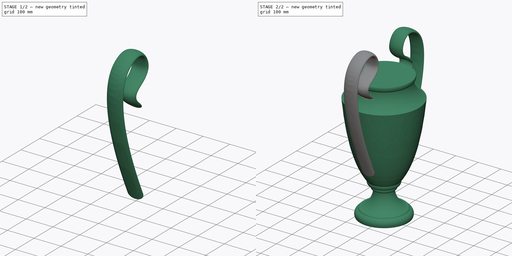
[diagram: build sequence overview — one tinted view per stage of 2, left to right]
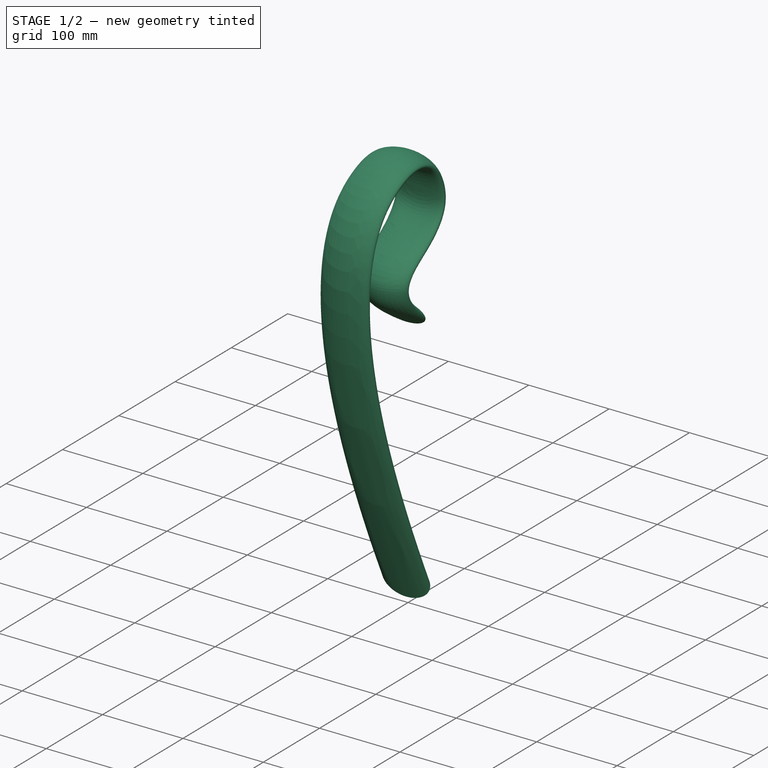
[diagram: stage 1 of 2 — iso view after this stage's code; geometry added in this stage tinted green]
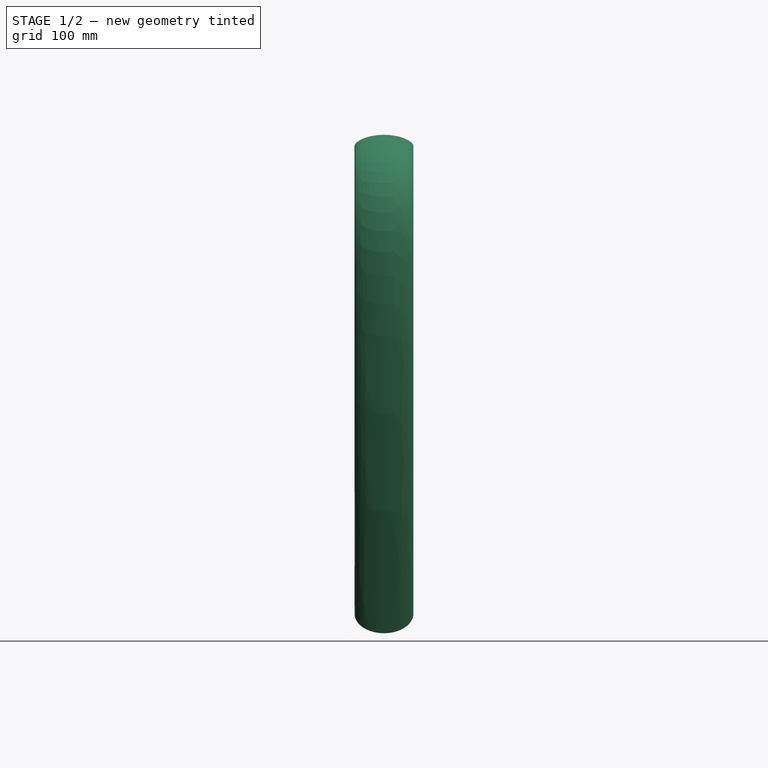
[diagram: stage 1 of 2 — front view after this stage's code; geometry added in this stage tinted green]
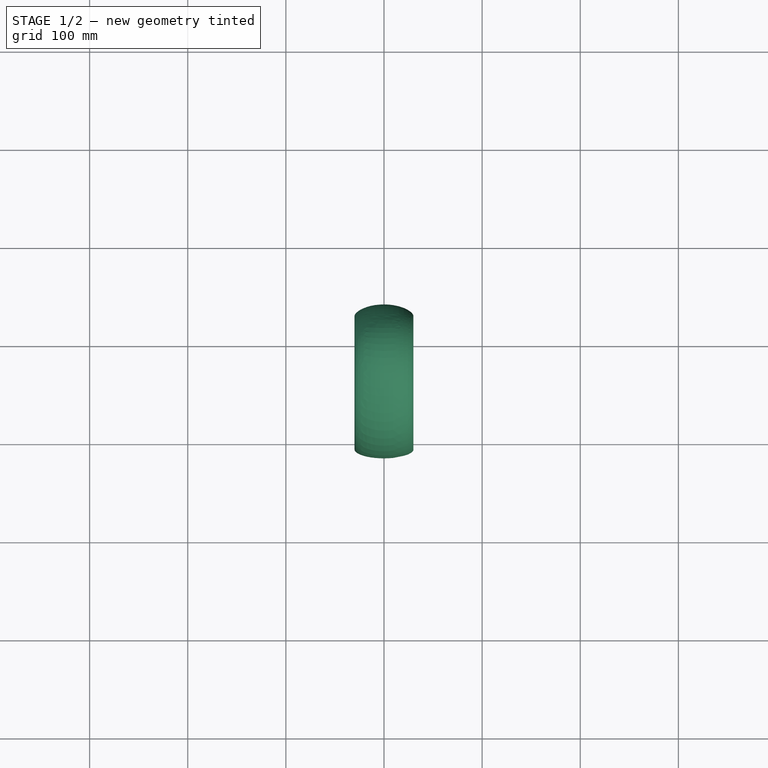
[diagram: stage 1 of 2 — top view after this stage's code; geometry added in this stage tinted green]
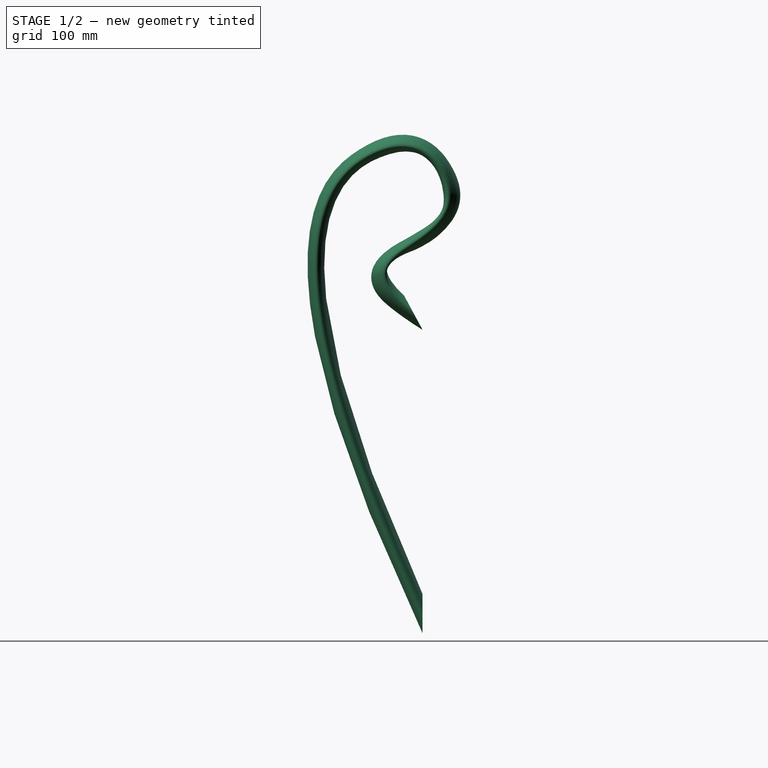
[diagram: stage 1 of 2 — right view after this stage's code; geometry added in this stage tinted green]
FCSTD DOCUMENT  (FreeCAD 0.18.3R)
Label: Champions
License: All rights reserved
LicenseURL: http://en.wikipedia.org/wiki/All_rights_reserved
objects: Sketcher::SketchObject×3, PartDesign::Body×2, Image::ImagePlane×1, PartDesign::Revolution×1, Part::Sweep×1, Part::Mirroring×1, Part::MultiFuse×1
note: 10 computed .brp shape members not serialized (recipe doc carries the construction recipe); baked Part::Feature solids carry a one-line shape summary decoded from their .brp

FEATURE [Sketcher::SketchObject] Sketch001
  ExternalGeometry = -> [Sketch]
  MapMode = 5
  Placement = pos=(0,0,0) rot=(0.57735,0.57735,0.57735;2.0944rad)
  Support = -> [YZ_Plane]
  sketch-geometry (13):
    g0-g6: Circle [constr] x7 (B-spline internal-alignment scaffolding for g7; pole/knot coordinates omitted)
    g7: BSplineCurve PolesCount=7 KnotsCount=5 Degree=3 IsPeriodic=0
    g8-g12: GeomPoint [constr] x5 (B-spline internal-alignment scaffolding for g7; pole/knot coordinates omitted)
  constraints (6):
    c: PointOnObject(g7,g-4)
    c: Radius(g0) = 70
    c: Equal(g0, g1-g6) x6
    c: PointOnObject(g7,g-3)
    c: InternalAlignment(g0-g6 -> g7) x7
    c: InternalAlignment(g8-g12 -> g7) x5
FEATURE [Sketcher::SketchObject] Sketch002
  ExternalGeometry = -> [Sketch001]
  Placement = pos=(0,103.45,0) rot=(1,0,0;1.5708rad)
  Support = -> [Sketch002]
  sketch-geometry (5):
    g0: Ellipse CenterX=-2.59e-14 CenterY=220.301 CenterZ=0 NormalX=0 NormalY=0 NormalZ=1 MajorRadius=30 MinorRadius=20 AngleXU=0
    g1: LineSegment [constr] StartX=30 StartY=220.301 StartZ=0 EndX=-30 EndY=220.301 EndZ=0
    g2: LineSegment [constr] StartX=-2.19e-14 StartY=240.301 StartZ=0 EndX=-3e-14 EndY=200.301 EndZ=0
    g3: GeomPoint X=22.3607 Y=220.301 Z=0
    g4: GeomPoint X=-22.3607 Y=220.301 Z=0
  constraints (5):
    c: InternalAlignment(g1-g4 -> g0) x4
    c: Coincident(g0,g-3)
    c: Horizontal(g0,g1)
    c: DistanceY(g2,g0) = 20
    c: DistanceX(g0,g1) = 30
FEATURE [PartDesign::Body] Body
  Group = -> [Sketch,Revolution,Sketch001,Sketch002]
  Origin = -> Origin
  Tip = -> Revolution
FEATURE [PartDesign::Body] Body001
  Origin = -> Origin001
FEATURE [Part::Sweep] Sweep
  Frenet = false
  Sections = -> [Sketch002]
  Solid = true
  Spine = -> Sketch001 [Edge1]
  Transition = 1
FEATURE [Part::Mirroring] Part__Mirroring  label="Sweep (Mirror #1)"
  Base = (0,0,0)
  Normal = (0,1,0)
  Source = -> Sweep
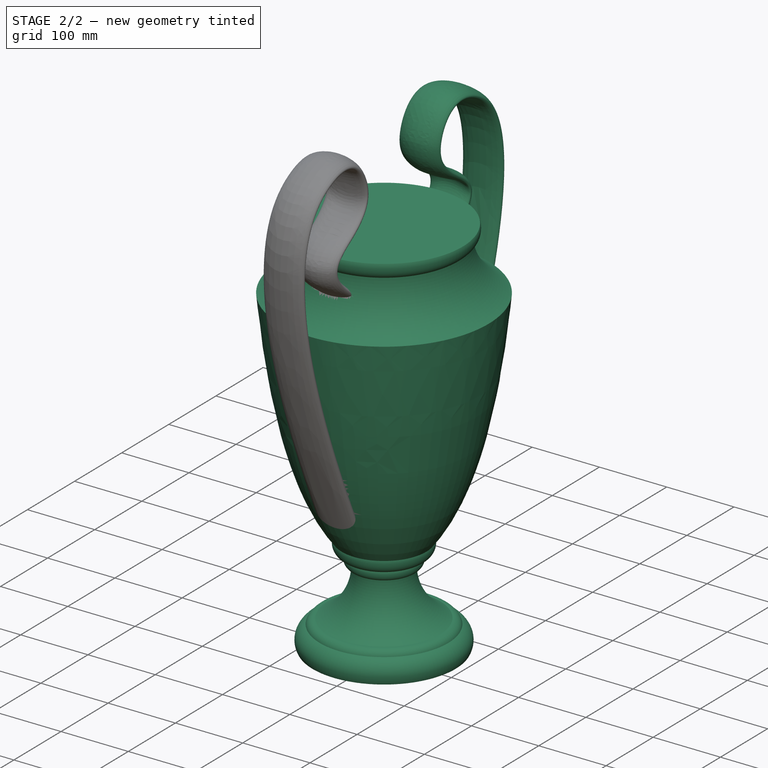
[diagram: stage 2 of 2 — iso view after this stage's code; geometry added in this stage tinted green]
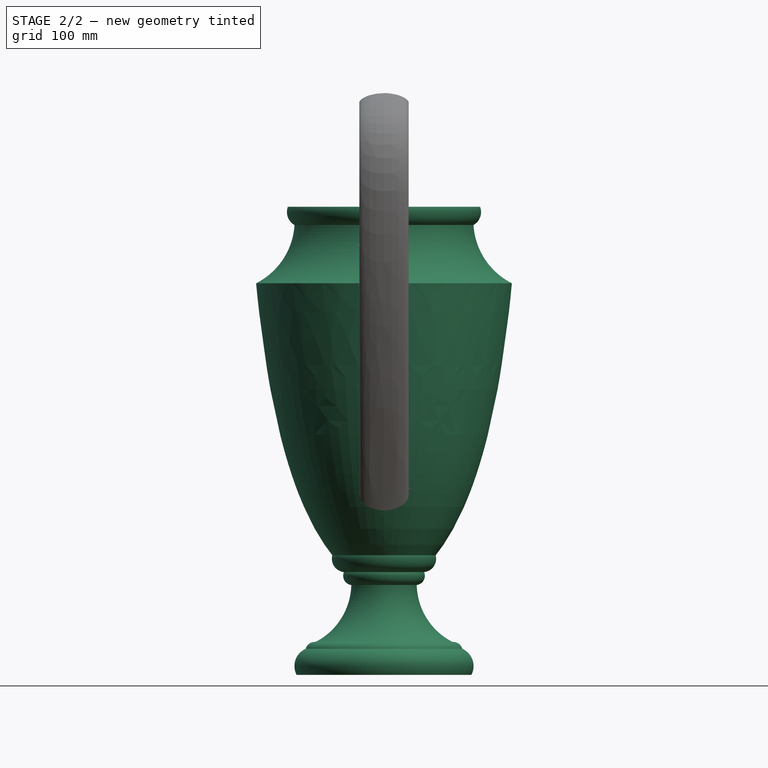
[diagram: stage 2 of 2 — front view after this stage's code; geometry added in this stage tinted green]
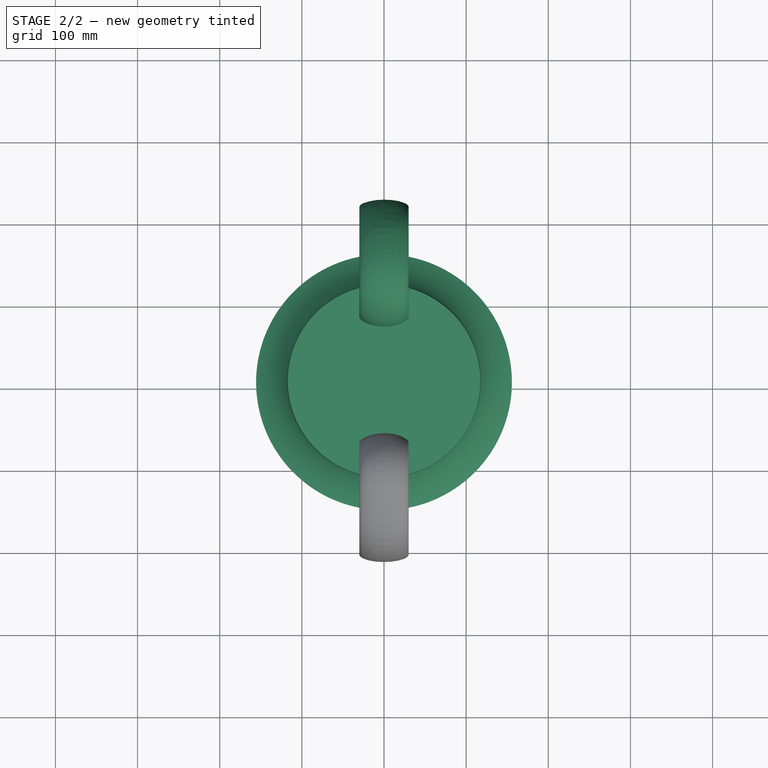
[diagram: stage 2 of 2 — top view after this stage's code; geometry added in this stage tinted green]
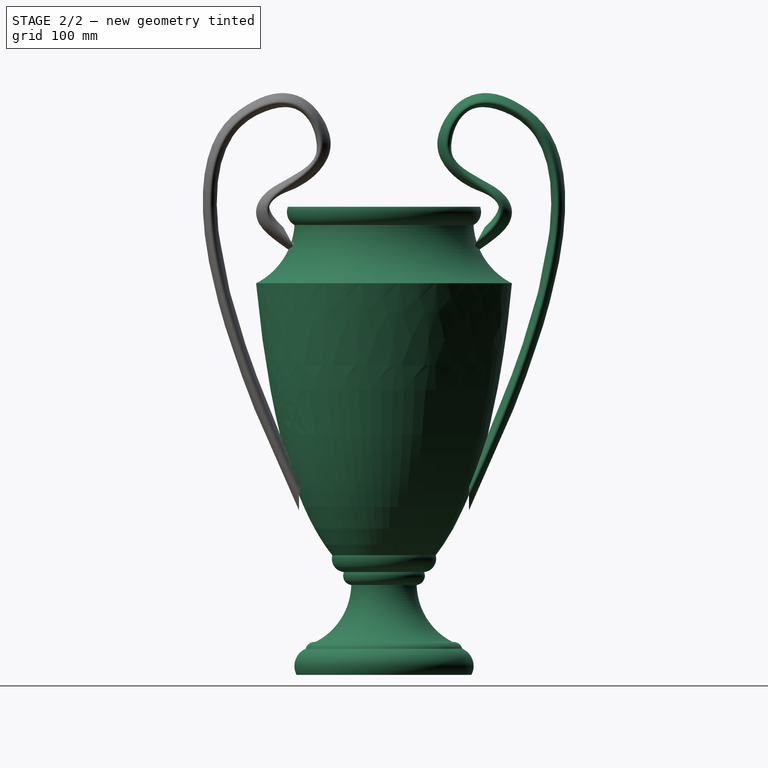
[diagram: stage 2 of 2 — right view after this stage's code; geometry added in this stage tinted green]
FEATURE [Sketcher::SketchObject] Sketch
  MapMode = 5
  Placement = pos=(0,0,0) rot=(0.57735,0.57735,0.57735;2.0944rad)
  Support = -> [YZ_Plane]
  sketch-geometry (16):
    g0: LineSegment StartX=0 StartY=0 StartZ=0 EndX=0 EndY=570 EndZ=0
    g1: LineSegment StartX=0 StartY=570 StartZ=0 EndX=117 EndY=570 EndZ=0
    g2: ArcOfCircle CenterX=99.9907 CenterY=563.503 CenterZ=0 NormalX=0 NormalY=0 NormalZ=1 AngleXU=0 Radius=18.208 StartAngle=5.22738 EndAngle=6.64807
    g3: ArcOfCircle CenterX=194.175 CenterY=553.037 CenterZ=0 NormalX=0 NormalY=0 NormalZ=1 AngleXU=0 Radius=85.3857 StartAngle=3.20465 EndAngle=4.24528
    g4: Circle [constr] CenterX=155.725 CenterY=476.798 CenterZ=0 NormalX=0 NormalY=0 NormalZ=1 AngleXU=0 Radius=40
    g5: Circle [constr] CenterX=132.618 CenterY=232.269 CenterZ=0 NormalX=0 NormalY=0 NormalZ=1 AngleXU=0 Radius=40
    g6: Circle [constr] CenterX=62.9496 CenterY=145.694 CenterZ=0 NormalX=0 NormalY=0 NormalZ=1 AngleXU=0 Radius=40
    g7: BSplineCurve PolesCount=3 KnotsCount=2 Degree=2 IsPeriodic=0
    g8: GeomPoint [constr] X=155.725 Y=476.798 Z=0
    g9: GeomPoint [constr] X=62.9496 Y=145.694 Z=0
    g10: ArcOfCircle CenterX=47.0928 CenterY=141.464 CenterZ=0 NormalX=0 NormalY=0 NormalZ=1 AngleXU=0 Radius=16.4114 StartAngle=4.81531 EndAngle=6.54389
    g11: ArcOfCircle CenterX=38.505 CenterY=120.618 CenterZ=0 NormalX=0 NormalY=0 NormalZ=1 AngleXU=0 Radius=11.2247 StartAngle=4.83027 EndAngle=6.69775
    g12: ArcOfCircle CenterX=119.789 CenterY=111.337 CenterZ=0 NormalX=0 NormalY=0 NormalZ=1 AngleXU=0 Radius=79.9857 StartAngle=3.16492 EndAngle=4.23959
    g13: ArcOfCircle CenterX=84.3083 CenterY=28.6003 CenterZ=0 NormalX=0 NormalY=0 NormalZ=1 AngleXU=0 Radius=11.5642 StartAngle=0.280064 EndAngle=1.65241
    g14: LineSegment StartX=0 StartY=0 StartZ=0 EndX=106.394 EndY=8.9e-15 EndZ=0
    g15: ArcOfCircle CenterX=86.0258 CenterY=10.7633 CenterZ=0 NormalX=0 NormalY=0 NormalZ=1 AngleXU=0 Radius=23.0368 StartAngle=5.79704 EndAngle=7.43386
  constraints (25):
    c: Coincident(g0,g-1)
    c: Vertical(g0)
    c: Coincident(g1,g0)
    c: Horizontal(g1)
    c: DistanceY(g0,g0) = 570
    c: DistanceX(g1,g1) = 117
    c: Coincident(g2,g1)
    c: Coincident(g3,g2)
    c: Coincident(g7,g3)
    c: Radius(g4) = 40
    c: Equal(g4,g5)
    c: Equal(g4,g6)
    c: InternalAlignment(g4,g7)
    c: InternalAlignment(g5,g7)
    c: InternalAlignment(g6,g7)
    c: InternalAlignment(g8,g7)
    c: InternalAlignment(g9,g7)
    c: Coincident(g10,g7)
    c: Coincident(g11,g10)
    c: Coincident(g12,g11)
    c: Coincident(g13,g12)
    c: Coincident(g14,g0)
    c: PointOnObject(g14,g-1)
    c: Coincident(g15,g13)
    c: Coincident(g15,g14)
FEATURE [Image::ImagePlane] ImagePlane
  Placement = pos=(0,0,361) rot=(0.57735,0.57735,0.57735;2.0944rad)
  XSize = 1359
  YSize = 762
FEATURE [PartDesign::Revolution] Revolution
  Angle = 360
  Axis = (-3e-16,3e-16,1)
  Base = (0,0,0)
  Midplane = true
  Placement = pos=(0,0,0) rot=(0.57735,0.57735,0.57735;2.0944rad)
  Profile = -> Sketch
  ReferenceAxis = -> Z_Axis
  Reversed = true
FEATURE [Part::MultiFuse] Fusion
  Refine = true
  Shapes = -> [Revolution,Part__Mirroring,Sweep]
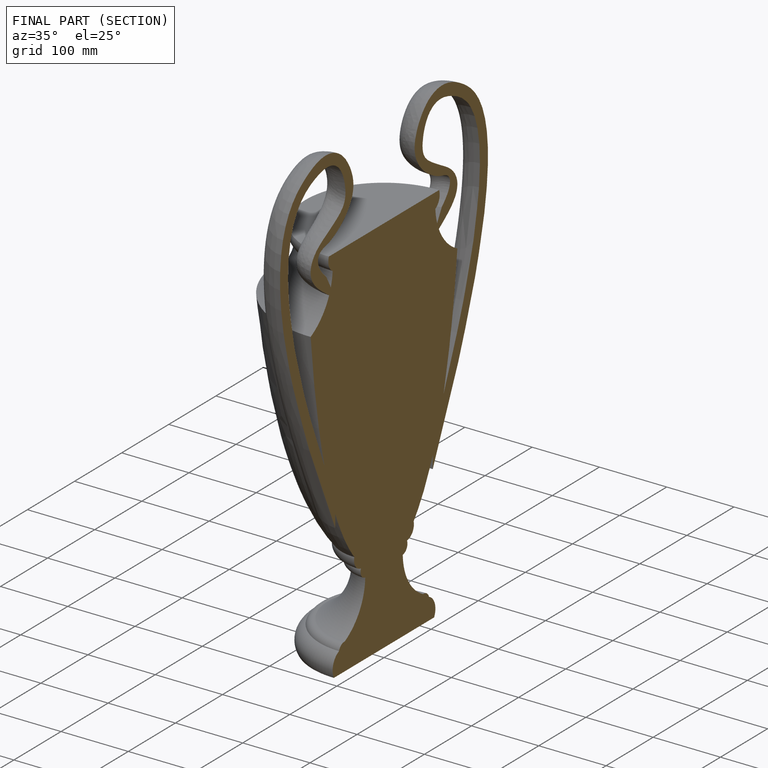
[diagram: finished part — half-section view (interior)]
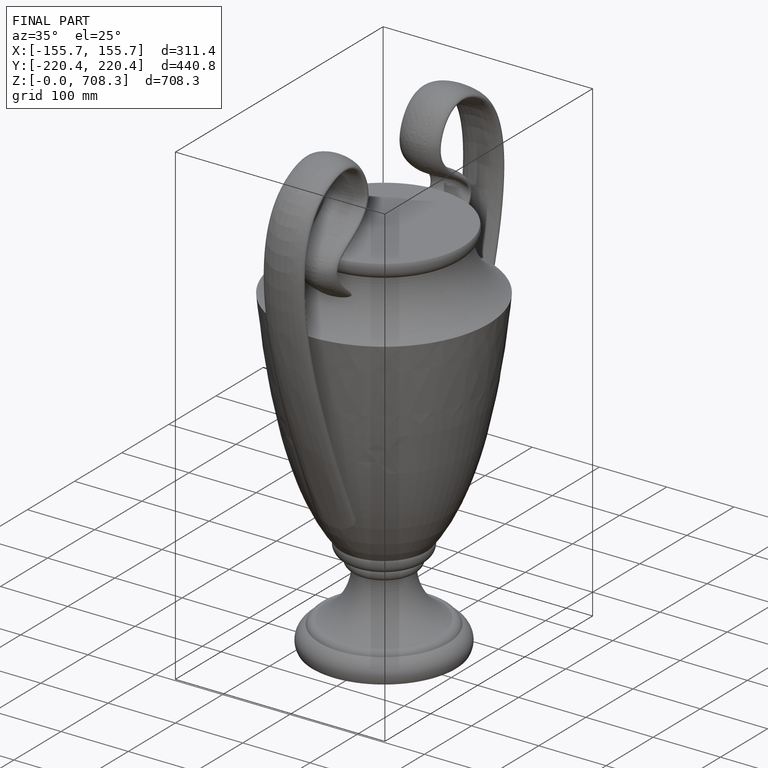
[diagram: finished part — iso view with bounding-box wireframe]
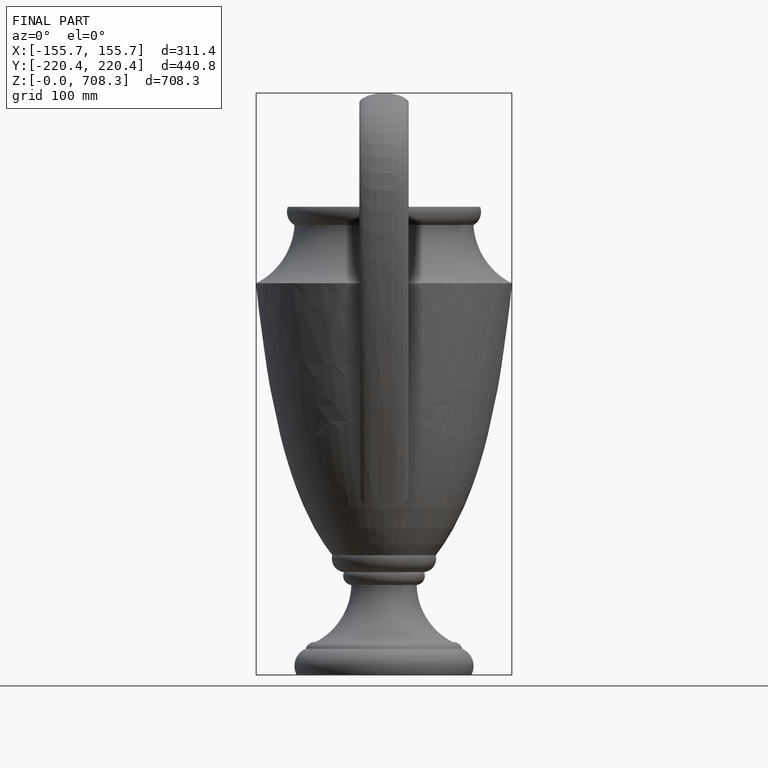
[diagram: finished part — front view with bounding-box wireframe]
